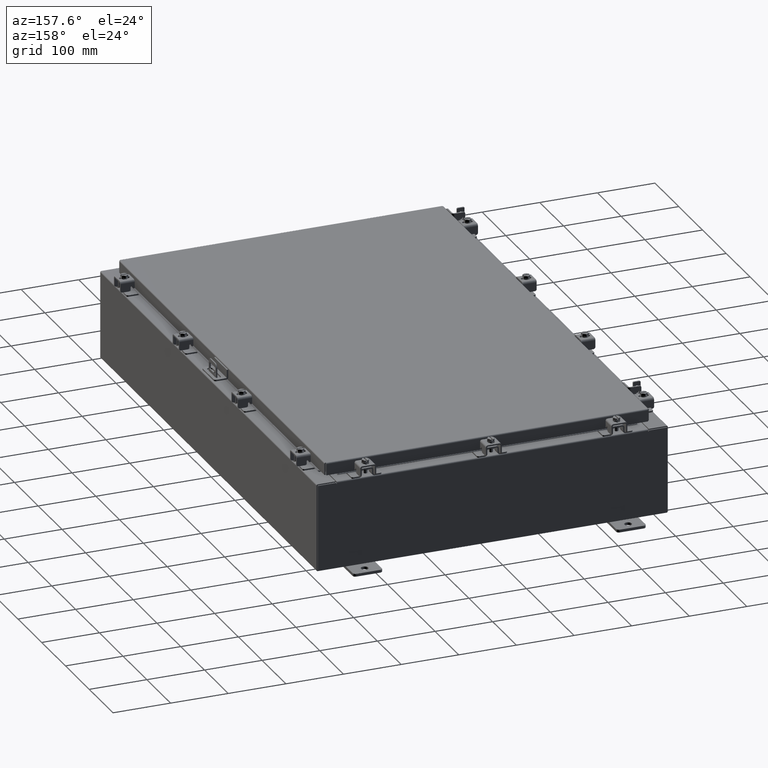
[diagram: clean part render]
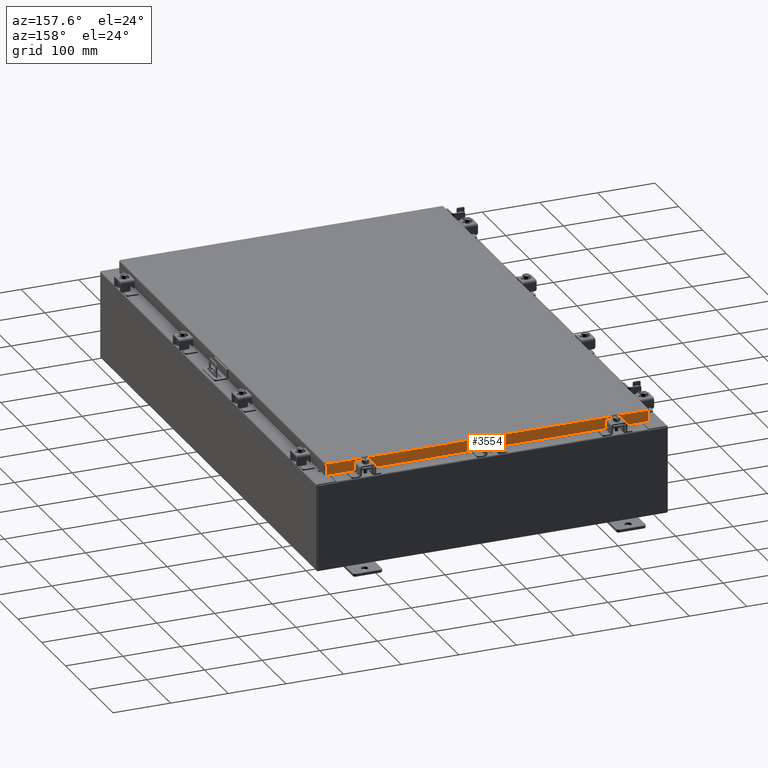
[diagram: same view with one face highlighted and labeled with its STEP entity id]
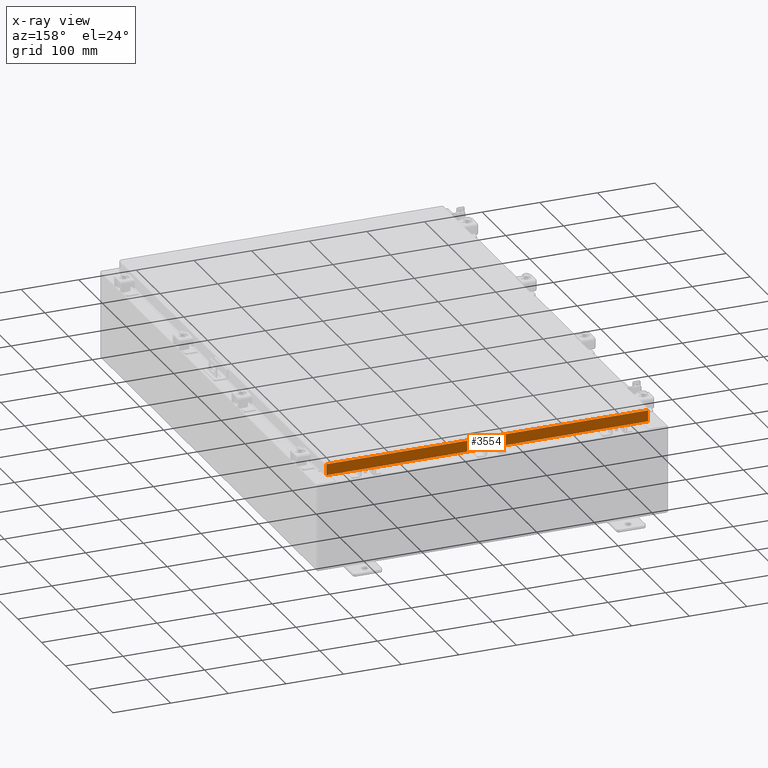
[diagram: x-ray of the same camera — body ghosted, the highlighted face saturated]
A machine part, auxiliary view. The second image highlights one B-rep face of the part: STEP entity #3554.
The next image is the same camera in x-ray: the body ghosted, the highlighted face saturated — about 0% of this face is hidden behind the body in this view.
In plain terms, the highlighted planar face has unit normal (0, -1, -0).
Its self-contained STEP definition (entity closure, byte-faithful):
#543 = CARTESIAN_POINT ( 'NONE',  ( 10.98915786437626700, 17.09399999999999800, -0.08770000000000007000 ) ) ;
#867 = DIRECTION ( 'NONE',  ( -0.0000000000000000000, 2.818880942772350300E-015, -1.000000000000000000 ) ) ;
#890 = VECTOR ( 'NONE', #867, 39.37007874015748100 ) ;
#1300 = CARTESIAN_POINT ( 'NONE',  ( -11.07800000000000300, 17.09400000000000100, -0.8500000000000024200 ) ) ;
#1477 = DIRECTION ( 'NONE',  ( 1.000000000000000000, -0.0000000000000000000, -0.0000000000000000000 ) ) ;
#1515 = VECTOR ( 'NONE', #12033, 39.37007874015748100 ) ;
#1539 = CARTESIAN_POINT ( 'NONE',  ( -10.98915786437626900, 17.09399999999999800, -0.08770000000000007000 ) ) ;
#1728 = EDGE_CURVE ( 'NONE', #9358, #17480, #10447, .T. ) ;
#2032 = EDGE_CURVE ( 'NONE', #17480, #14102, #14930, .T. ) ;
#2448 = EDGE_CURVE ( 'NONE', #14102, #8408, #7072, .T. ) ;
#3554 = ADVANCED_FACE ( 'NONE', ( #12356 ), #8073, .F. ) ;
#4452 = CARTESIAN_POINT ( 'NONE',  ( -5.941356432273423300E-030, 17.09399999999999800, 4.844676449176213100E-014 ) ) ;
#5196 = AXIS2_PLACEMENT_3D ( 'NONE', #4452, #22452, #11675 ) ;
#5856 = CARTESIAN_POINT ( 'NONE',  ( 10.98915786437626700, 17.09400000000000100, -0.8499999999999996400 ) ) ;
#7072 = LINE ( 'NONE', #8640, #20824 ) ;
#8064 = EDGE_CURVE ( 'NONE', #8408, #10457, #16500, .T. ) ;
#8073 = PLANE ( 'NONE',  #5196 ) ;
#8408 = VERTEX_POINT ( 'NONE', #21883 ) ;
#8481 = LINE ( 'NONE', #19220, #21127 ) ;
#8640 = CARTESIAN_POINT ( 'NONE',  ( -10.23915786437626700, 17.09399999999999100, -0.8500000000000033100 ) ) ;
#9358 = VERTEX_POINT ( 'NONE', #1539 ) ;
#9974 = ORIENTED_EDGE ( 'NONE', *, *, #2448, .F. ) ;
#10447 = LINE ( 'NONE', #22419, #890 ) ;
#10457 = VERTEX_POINT ( 'NONE', #5856 ) ;
#10493 = LINE ( 'NONE', #22738, #1515 ) ;
#10592 = DIRECTION ( 'NONE',  ( 1.000000000000000000, -4.379057701015054300E-047, 1.233005954894504400E-016 ) ) ;
#10603 = VECTOR ( 'NONE', #19275, 39.37007874015748100 ) ;
#11675 = DIRECTION ( 'NONE',  ( 0.0000000000000000000, 2.818880942772350300E-015, -1.000000000000000000 ) ) ;
#12033 = DIRECTION ( 'NONE',  ( -1.000000000000000000, -3.475696988576942200E-031, -9.473942235605600700E-046 ) ) ;
#12356 = FACE_OUTER_BOUND ( 'NONE', #16006, .T. ) ;
#13355 = VERTEX_POINT ( 'NONE', #543 ) ;
#13718 = CARTESIAN_POINT ( 'NONE',  ( -10.98915786437626900, 17.09400000000000100, -0.8500000000000024200 ) ) ;
#14102 = VERTEX_POINT ( 'NONE', #16767 ) ;
#14212 = EDGE_CURVE ( 'NONE', #13355, #10457, #8481, .T. ) ;
#14217 = CARTESIAN_POINT ( 'NONE',  ( -11.07800000000000300, 17.09400000000000100, -0.8500000000000024200 ) ) ;
#14930 = LINE ( 'NONE', #14217, #18559 ) ;
#16006 = EDGE_LOOP ( 'NONE', ( #23131, #19726, #20550, #9974, #20451, #21391 ) ) ;
#16500 = LINE ( 'NONE', #1300, #10603 ) ;
#16767 = CARTESIAN_POINT ( 'NONE',  ( -10.23915786437626700, 17.09399999999999100, -0.8500000000000033100 ) ) ;
#17480 = VERTEX_POINT ( 'NONE', #13718 ) ;
#18559 = VECTOR ( 'NONE', #10592, 39.37007874015748100 ) ;
#18706 = EDGE_CURVE ( 'NONE', #13355, #9358, #10493, .T. ) ;
#19220 = CARTESIAN_POINT ( 'NONE',  ( 10.98915786437626700, 17.09399999999999800, 4.844676449176213100E-014 ) ) ;
#19275 = DIRECTION ( 'NONE',  ( 1.000000000000000000, -4.379057701015054300E-047, 1.233005954894504400E-016 ) ) ;
#19726 = ORIENTED_EDGE ( 'NONE', *, *, #14212, .T. ) ;
#20451 = ORIENTED_EDGE ( 'NONE', *, *, #2032, .F. ) ;
#20550 = ORIENTED_EDGE ( 'NONE', *, *, #8064, .F. ) ;
#20824 = VECTOR ( 'NONE', #1477, 39.37007874015748100 ) ;
#21036 = DIRECTION ( 'NONE',  ( 0.0000000000000000000, 2.818880942772350300E-015, -1.000000000000000000 ) ) ;
#21127 = VECTOR ( 'NONE', #21036, 39.37007874015748100 ) ;
#21391 = ORIENTED_EDGE ( 'NONE', *, *, #1728, .F. ) ;
#21883 = CARTESIAN_POINT ( 'NONE',  ( 10.23915786437626700, 17.09399999999999100, -0.8500000000000033100 ) ) ;
#22419 = CARTESIAN_POINT ( 'NONE',  ( -10.98915786437626900, 17.09399999999999800, -0.07469999999999978000 ) ) ;
#22452 = DIRECTION ( 'NONE',  ( 3.475696988576941300E-031, -1.000000000000000000, -2.818880942772350300E-015 ) ) ;
#22738 = CARTESIAN_POINT ( 'NONE',  ( -11.07800000000000300, 17.09399999999999800, -0.08770000000000007000 ) ) ;
#23131 = ORIENTED_EDGE ( 'NONE', *, *, #18706, .F. ) ;